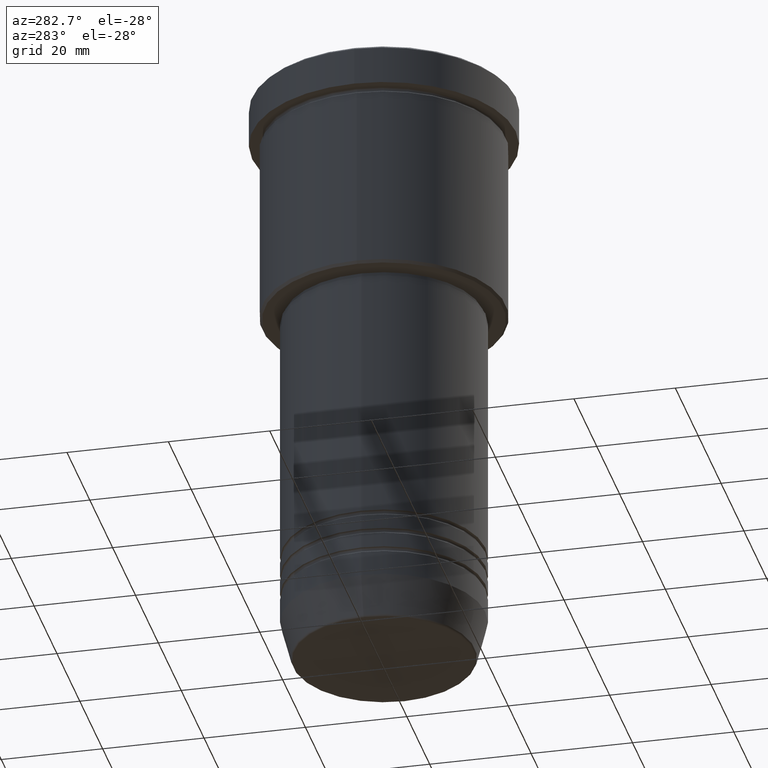
[diagram: clean part render]
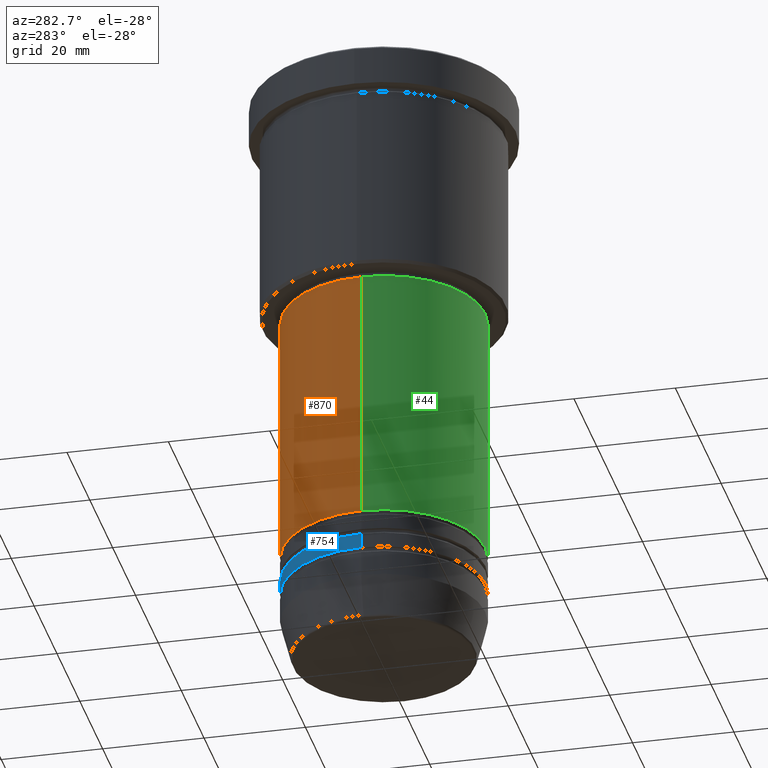
[diagram: same view with three faces highlighted in distinct colors, each labeled with its STEP entity id]
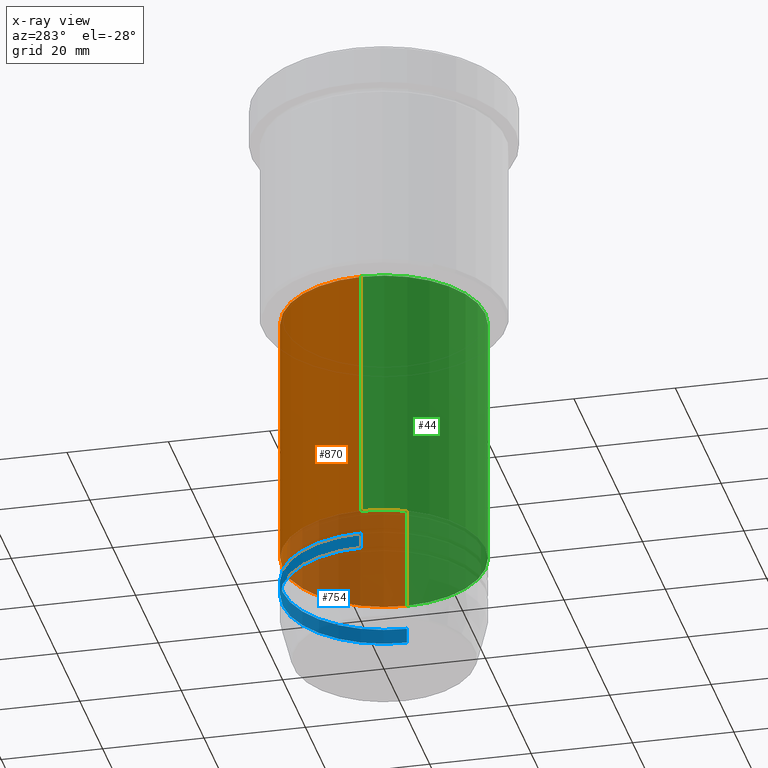
[diagram: x-ray of the same camera — body ghosted, the three highlighted faces saturated]
A machine part, auxiliary view with three faces highlighted in distinct colors.
The next image is the same camera in x-ray (body ghosted, the three faces saturated) — at least one of them is partly hidden behind the body in this view.
Their STEP definitions:

[orange] entity #870 — the highlighted cylindrical surface (partial cylindrical patch) has radius 20 mm, axis along (-0, -0, 1).
#2 = ORIENTED_EDGE ( 'NONE', *, *, #104, .F. ) ;
#83 = CARTESIAN_POINT ( 'NONE',  ( -20.00000000000000355, 2.449293598294706907E-15, -47.00000000000002132 ) ) ;
#104 = EDGE_CURVE ( 'NONE', #916, #520, #1116, .T. ) ;
#116 = CARTESIAN_POINT ( 'NONE',  ( 20.00000000000000355, 0.000000000000000000, 0.000000000000000000 ) ) ;
#140 = CARTESIAN_POINT ( 'NONE',  ( 20.00000000000000355, 0.000000000000000000, -47.00000000000002132 ) ) ;
#147 = CIRCLE ( 'NONE', #257, 20.00000000000000355 ) ;
#215 = AXIS2_PLACEMENT_3D ( 'NONE', #772, #839, #1038 ) ;
#232 = DIRECTION ( 'NONE',  ( -0.000000000000000000, -0.000000000000000000, 1.000000000000000000 ) ) ;
#236 = CARTESIAN_POINT ( 'NONE',  ( 0.000000000000000000, 0.000000000000000000, 0.000000000000000000 ) ) ;
#248 = DIRECTION ( 'NONE',  ( 1.000000000000000000, 0.000000000000000000, 0.000000000000000000 ) ) ;
#255 = DIRECTION ( 'NONE',  ( 1.000000000000000000, 0.000000000000000000, 0.000000000000000000 ) ) ;
#257 = AXIS2_PLACEMENT_3D ( 'NONE', #802, #318, #255 ) ;
#272 = VERTEX_POINT ( 'NONE', #881 ) ;
#279 = DIRECTION ( 'NONE',  ( -0.000000000000000000, -0.000000000000000000, 1.000000000000000000 ) ) ;
#318 = DIRECTION ( 'NONE',  ( -0.000000000000000000, -0.000000000000000000, 1.000000000000000000 ) ) ;
#320 = LINE ( 'NONE', #690, #873 ) ;
#368 = AXIS2_PLACEMENT_3D ( 'NONE', #236, #1158, #248 ) ;
#436 = ORIENTED_EDGE ( 'NONE', *, *, #897, .T. ) ;
#491 = ORIENTED_EDGE ( 'NONE', *, *, #816, .T. ) ;
#520 = VERTEX_POINT ( 'NONE', #83 ) ;
#531 = VECTOR ( 'NONE', #279, 1000.000000000000000 ) ;
#632 = EDGE_CURVE ( 'NONE', #272, #916, #1132, .T. ) ;
#690 = CARTESIAN_POINT ( 'NONE',  ( -20.00000000000000355, 2.449293598294706907E-15, 0.000000000000000000 ) ) ;
#751 = CARTESIAN_POINT ( 'NONE',  ( -20.00000000000000355, 2.449293598294706907E-15, -97.99999999999997158 ) ) ;
#772 = CARTESIAN_POINT ( 'NONE',  ( 0.000000000000000000, 0.000000000000000000, -47.00000000000002132 ) ) ;
#783 = FACE_OUTER_BOUND ( 'NONE', #915, .T. ) ;
#802 = CARTESIAN_POINT ( 'NONE',  ( 0.000000000000000000, 0.000000000000000000, -97.99999999999997158 ) ) ;
#816 = EDGE_CURVE ( 'NONE', #1100, #520, #320, .T. ) ;
#839 = DIRECTION ( 'NONE',  ( -0.000000000000000000, -0.000000000000000000, 1.000000000000000000 ) ) ;
#870 = ADVANCED_FACE ( 'NONE', ( #783 ), #975, .T. ) ;
#873 = VECTOR ( 'NONE', #232, 1000.000000000000000 ) ;
#881 = CARTESIAN_POINT ( 'NONE',  ( 20.00000000000000355, 0.000000000000000000, -97.99999999999997158 ) ) ;
#897 = EDGE_CURVE ( 'NONE', #272, #1100, #147, .T. ) ;
#915 = EDGE_LOOP ( 'NONE', ( #436, #491, #2, #920 ) ) ;
#916 = VERTEX_POINT ( 'NONE', #140 ) ;
#920 = ORIENTED_EDGE ( 'NONE', *, *, #632, .F. ) ;
#975 = CYLINDRICAL_SURFACE ( 'NONE', #368, 20.00000000000000355 ) ;
#1038 = DIRECTION ( 'NONE',  ( 1.000000000000000000, 0.000000000000000000, 0.000000000000000000 ) ) ;
#1100 = VERTEX_POINT ( 'NONE', #751 ) ;
#1116 = CIRCLE ( 'NONE', #215, 20.00000000000000355 ) ;
#1132 = LINE ( 'NONE', #116, #531 ) ;
#1158 = DIRECTION ( 'NONE',  ( -0.000000000000000000, -0.000000000000000000, 1.000000000000000000 ) ) ;

[blue] entity #754 — the highlighted cylindrical surface (partial cylindrical patch) has radius 20 mm, axis along (-0, -0, 1).
#19 = DIRECTION ( 'NONE',  ( -0.000000000000000000, -0.000000000000000000, 1.000000000000000000 ) ) ;
#38 = CARTESIAN_POINT ( 'NONE',  ( 0.000000000000000000, 0.000000000000000000, -105.9999999999999716 ) ) ;
#45 = DIRECTION ( 'NONE',  ( 1.000000000000000000, 0.000000000000000000, 0.000000000000000000 ) ) ;
#55 = CARTESIAN_POINT ( 'NONE',  ( 20.00000000000000355, 0.000000000000000000, 0.000000000000000000 ) ) ;
#138 = CARTESIAN_POINT ( 'NONE',  ( 20.00000000000000355, 0.000000000000000000, -105.9999999999999716 ) ) ;
#145 = AXIS2_PLACEMENT_3D ( 'NONE', #1146, #705, #589 ) ;
#308 = VERTEX_POINT ( 'NONE', #138 ) ;
#473 = CARTESIAN_POINT ( 'NONE',  ( -20.00000000000000355, 2.449293598294706907E-15, 0.000000000000000000 ) ) ;
#500 = DIRECTION ( 'NONE',  ( -0.000000000000000000, -0.000000000000000000, 1.000000000000000000 ) ) ;
#562 = CIRCLE ( 'NONE', #718, 20.00000000000000355 ) ;
#589 = DIRECTION ( 'NONE',  ( 1.000000000000000000, 0.000000000000000000, 0.000000000000000000 ) ) ;
#594 = ORIENTED_EDGE ( 'NONE', *, *, #720, .T. ) ;
#610 = ORIENTED_EDGE ( 'NONE', *, *, #715, .F. ) ;
#614 = CARTESIAN_POINT ( 'NONE',  ( -20.00000000000000000, 2.449293598294706513E-15, -102.9999999999999858 ) ) ;
#615 = EDGE_LOOP ( 'NONE', ( #594, #910, #610, #899 ) ) ;
#617 = DIRECTION ( 'NONE',  ( -0.000000000000000000, -0.000000000000000000, 1.000000000000000000 ) ) ;
#697 = CYLINDRICAL_SURFACE ( 'NONE', #145, 20.00000000000000355 ) ;
#705 = DIRECTION ( 'NONE',  ( -0.000000000000000000, -0.000000000000000000, 1.000000000000000000 ) ) ;
#710 = VERTEX_POINT ( 'NONE', #614 ) ;
#715 = EDGE_CURVE ( 'NONE', #1011, #710, #932, .T. ) ;
#718 = AXIS2_PLACEMENT_3D ( 'NONE', #38, #974, #45 ) ;
#720 = EDGE_CURVE ( 'NONE', #308, #741, #562, .T. ) ;
#741 = VERTEX_POINT ( 'NONE', #1051 ) ;
#754 = ADVANCED_FACE ( 'NONE', ( #875 ), #697, .T. ) ;
#760 = VECTOR ( 'NONE', #19, 1000.000000000000000 ) ;
#875 = FACE_OUTER_BOUND ( 'NONE', #615, .T. ) ;
#886 = CARTESIAN_POINT ( 'NONE',  ( 0.000000000000000000, 0.000000000000000000, -102.9999999999999858 ) ) ;
#899 = ORIENTED_EDGE ( 'NONE', *, *, #984, .F. ) ;
#910 = ORIENTED_EDGE ( 'NONE', *, *, #1122, .T. ) ;
#932 = CIRCLE ( 'NONE', #1090, 20.00000000000000000 ) ;
#974 = DIRECTION ( 'NONE',  ( -0.000000000000000000, -0.000000000000000000, 1.000000000000000000 ) ) ;
#984 = EDGE_CURVE ( 'NONE', #308, #1011, #986, .T. ) ;
#986 = LINE ( 'NONE', #55, #1008 ) ;
#1008 = VECTOR ( 'NONE', #617, 1000.000000000000000 ) ;
#1011 = VERTEX_POINT ( 'NONE', #1040 ) ;
#1040 = CARTESIAN_POINT ( 'NONE',  ( 20.00000000000000000, 0.000000000000000000, -102.9999999999999858 ) ) ;
#1051 = CARTESIAN_POINT ( 'NONE',  ( -20.00000000000000355, 2.449293598294706907E-15, -105.9999999999999716 ) ) ;
#1090 = AXIS2_PLACEMENT_3D ( 'NONE', #886, #500, #1154 ) ;
#1119 = LINE ( 'NONE', #473, #760 ) ;
#1122 = EDGE_CURVE ( 'NONE', #741, #710, #1119, .T. ) ;
#1146 = CARTESIAN_POINT ( 'NONE',  ( 0.000000000000000000, 0.000000000000000000, 0.000000000000000000 ) ) ;
#1154 = DIRECTION ( 'NONE',  ( 1.000000000000000000, 0.000000000000000000, 0.000000000000000000 ) ) ;

[green] entity #44 — the highlighted cylindrical surface (partial cylindrical patch) has radius 20 mm, axis along (-0, -0, 1).
#21 = DIRECTION ( 'NONE',  ( -0.000000000000000000, -0.000000000000000000, 1.000000000000000000 ) ) ;
#44 = ADVANCED_FACE ( 'NONE', ( #174 ), #537, .T. ) ;
#77 = ORIENTED_EDGE ( 'NONE', *, *, #1036, .F. ) ;
#83 = CARTESIAN_POINT ( 'NONE',  ( -20.00000000000000355, 2.449293598294706907E-15, -47.00000000000002132 ) ) ;
#105 = CARTESIAN_POINT ( 'NONE',  ( 0.000000000000000000, 0.000000000000000000, -47.00000000000002132 ) ) ;
#116 = CARTESIAN_POINT ( 'NONE',  ( 20.00000000000000355, 0.000000000000000000, 0.000000000000000000 ) ) ;
#140 = CARTESIAN_POINT ( 'NONE',  ( 20.00000000000000355, 0.000000000000000000, -47.00000000000002132 ) ) ;
#174 = FACE_OUTER_BOUND ( 'NONE', #421, .T. ) ;
#209 = DIRECTION ( 'NONE',  ( 1.000000000000000000, 0.000000000000000000, 0.000000000000000000 ) ) ;
#232 = DIRECTION ( 'NONE',  ( -0.000000000000000000, -0.000000000000000000, 1.000000000000000000 ) ) ;
#272 = VERTEX_POINT ( 'NONE', #881 ) ;
#279 = DIRECTION ( 'NONE',  ( -0.000000000000000000, -0.000000000000000000, 1.000000000000000000 ) ) ;
#282 = AXIS2_PLACEMENT_3D ( 'NONE', #627, #1177, #993 ) ;
#312 = CIRCLE ( 'NONE', #679, 20.00000000000000355 ) ;
#320 = LINE ( 'NONE', #690, #873 ) ;
#351 = ORIENTED_EDGE ( 'NONE', *, *, #632, .T. ) ;
#421 = EDGE_LOOP ( 'NONE', ( #538, #1174, #351, #77 ) ) ;
#520 = VERTEX_POINT ( 'NONE', #83 ) ;
#531 = VECTOR ( 'NONE', #279, 1000.000000000000000 ) ;
#537 = CYLINDRICAL_SURFACE ( 'NONE', #282, 20.00000000000000355 ) ;
#538 = ORIENTED_EDGE ( 'NONE', *, *, #816, .F. ) ;
#564 = AXIS2_PLACEMENT_3D ( 'NONE', #105, #1113, #209 ) ;
#581 = CIRCLE ( 'NONE', #564, 20.00000000000000355 ) ;
#627 = CARTESIAN_POINT ( 'NONE',  ( 0.000000000000000000, 0.000000000000000000, 0.000000000000000000 ) ) ;
#632 = EDGE_CURVE ( 'NONE', #272, #916, #1132, .T. ) ;
#660 = EDGE_CURVE ( 'NONE', #1100, #272, #312, .T. ) ;
#679 = AXIS2_PLACEMENT_3D ( 'NONE', #843, #21, #753 ) ;
#690 = CARTESIAN_POINT ( 'NONE',  ( -20.00000000000000355, 2.449293598294706907E-15, 0.000000000000000000 ) ) ;
#751 = CARTESIAN_POINT ( 'NONE',  ( -20.00000000000000355, 2.449293598294706907E-15, -97.99999999999997158 ) ) ;
#753 = DIRECTION ( 'NONE',  ( 1.000000000000000000, 0.000000000000000000, 0.000000000000000000 ) ) ;
#816 = EDGE_CURVE ( 'NONE', #1100, #520, #320, .T. ) ;
#843 = CARTESIAN_POINT ( 'NONE',  ( 0.000000000000000000, 0.000000000000000000, -97.99999999999997158 ) ) ;
#873 = VECTOR ( 'NONE', #232, 1000.000000000000000 ) ;
#881 = CARTESIAN_POINT ( 'NONE',  ( 20.00000000000000355, 0.000000000000000000, -97.99999999999997158 ) ) ;
#916 = VERTEX_POINT ( 'NONE', #140 ) ;
#993 = DIRECTION ( 'NONE',  ( 1.000000000000000000, 0.000000000000000000, 0.000000000000000000 ) ) ;
#1036 = EDGE_CURVE ( 'NONE', #520, #916, #581, .T. ) ;
#1100 = VERTEX_POINT ( 'NONE', #751 ) ;
#1113 = DIRECTION ( 'NONE',  ( -0.000000000000000000, -0.000000000000000000, 1.000000000000000000 ) ) ;
#1132 = LINE ( 'NONE', #116, #531 ) ;
#1174 = ORIENTED_EDGE ( 'NONE', *, *, #660, .T. ) ;
#1177 = DIRECTION ( 'NONE',  ( -0.000000000000000000, -0.000000000000000000, 1.000000000000000000 ) ) ;